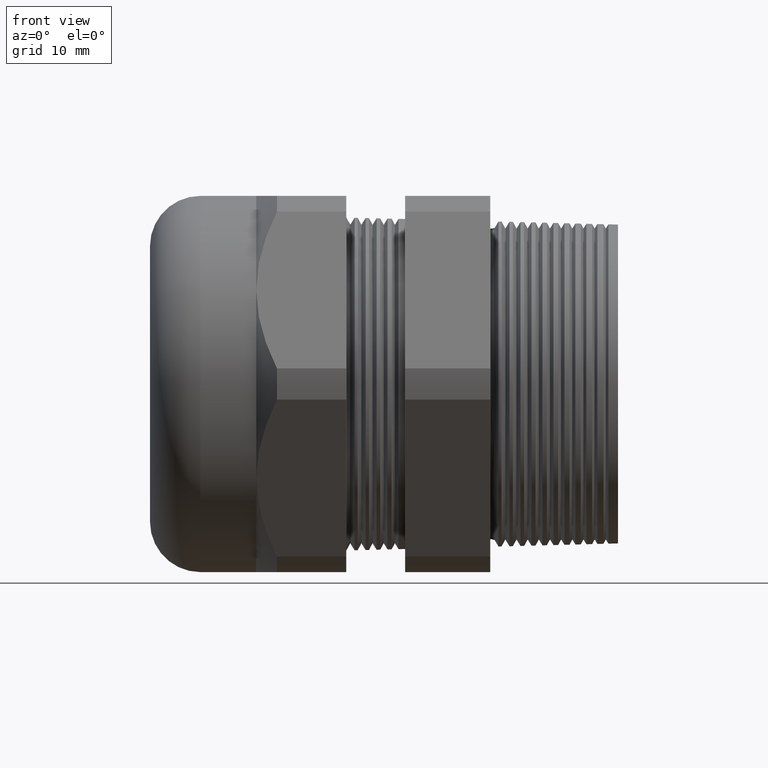
[diagram: clean part render]
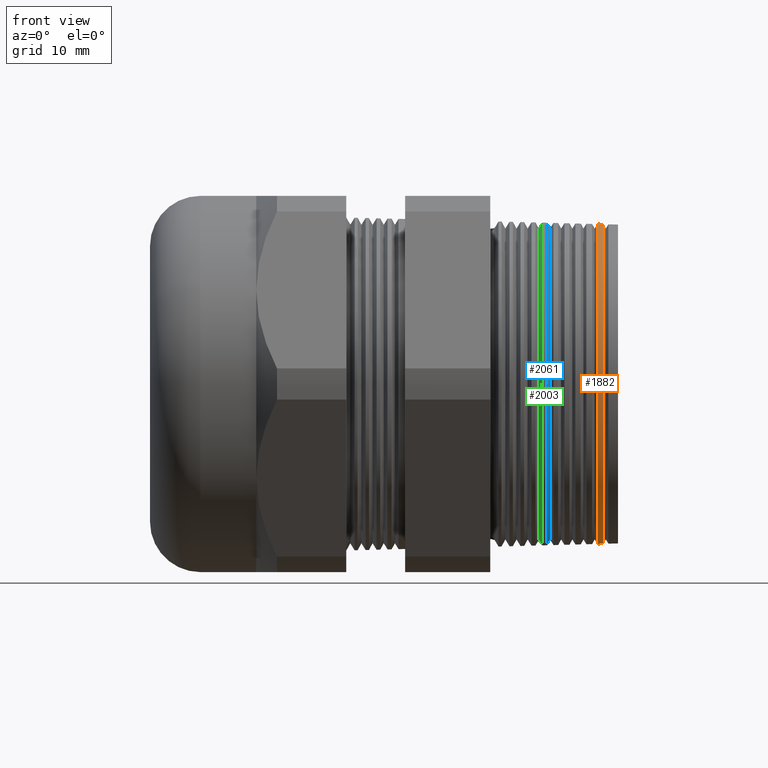
[diagram: same view with three faces highlighted in distinct colors, each labeled with its STEP entity id]
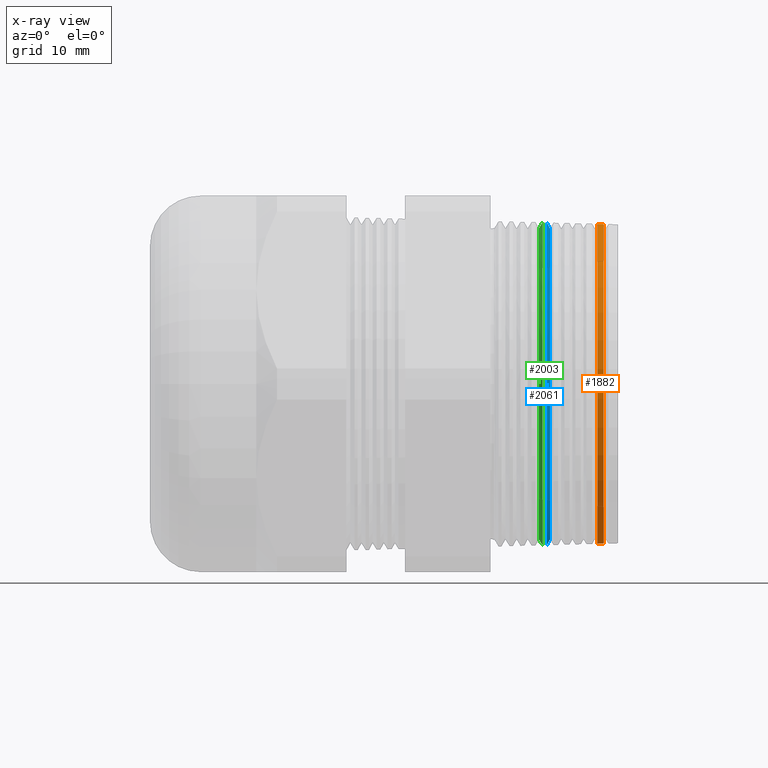
[diagram: x-ray of the same camera — body ghosted, the three highlighted faces saturated]
A machine part, front view with three faces highlighted in distinct colors.
The next image is the same camera in x-ray (body ghosted, the three faces saturated) — at least one of them is partly hidden behind the body in this view.
Their STEP definitions:

[orange] entity #1882 — the highlighted conical surface has half-angle 1.5 deg.
#1320 = VERTEX_POINT ( 'NONE', #2997 ) ;
#1341 = VERTEX_POINT ( 'NONE', #3020 ) ;
#1347 = VERTEX_POINT ( 'NONE', #3073 ) ;
#1349 = VERTEX_POINT ( 'NONE', #3067 ) ;
#1682 = EDGE_CURVE ( 'NONE', #1320, #1347, #3696, .T. ) ;
#1685 = EDGE_CURVE ( 'NONE', #1349, #1341, #3687, .T. ) ;
#1824 = EDGE_LOOP ( 'NONE', ( #1883, #1884, #1886, #1887 ) ) ;
#1882 = ADVANCED_FACE ( 'NONE', ( #4159 ), #4158, .T. ) ;
#1883 = ORIENTED_EDGE ( 'NONE', *, *, #1682, .F. ) ;
#1884 = ORIENTED_EDGE ( 'NONE', *, *, #1885, .F. ) ;
#1885 = EDGE_CURVE ( 'NONE', #1349, #1320, #4157, .T. ) ;
#1886 = ORIENTED_EDGE ( 'NONE', *, *, #1685, .T. ) ;
#1887 = ORIENTED_EDGE ( 'NONE', *, *, #1888, .F. ) ;
#1888 = EDGE_CURVE ( 'NONE', #1347, #1341, #4147, .T. ) ;
#2997 = CARTESIAN_POINT ( 'NONE',  ( 0.3189421710857152100, 1.087530360384712000E-016, -0.8875962346379190300 ) ) ;
#3020 = CARTESIAN_POINT ( 'NONE',  ( 0.2853595204696677300, 0.0000000000000000000, 0.8884756272930359700 ) ) ;
#3067 = CARTESIAN_POINT ( 'NONE',  ( 0.3189421710857152100, 0.0000000000000000000, 0.8875962346379190300 ) ) ;
#3073 = CARTESIAN_POINT ( 'NONE',  ( 0.2853595204696677300, 1.088068833084853300E-016, -0.8884756272930359700 ) ) ;
#3684 = DIRECTION ( 'NONE',  ( -0.9996573249755573700, 0.0000000000000000000, 0.02617694830786613000 ) ) ;
#3685 = VECTOR ( 'NONE', #3684, 39.37007874015748100 ) ;
#3686 = CARTESIAN_POINT ( 'NONE',  ( 0.3999999999999999700, 0.0000000000000000000, 0.8854736606874015200 ) ) ;
#3687 = LINE ( 'NONE', #3686, #3685 ) ;
#3688 = DIRECTION ( 'NONE',  ( -0.9996573249755573700, 3.205751595667398900E-018, -0.02617694830786613000 ) ) ;
#3689 = VECTOR ( 'NONE', #3688, 39.37007874015748100 ) ;
#3690 = CARTESIAN_POINT ( 'NONE',  ( 0.3999999999999999700, 1.084392484290115800E-016, -0.8854736606874015200 ) ) ;
#3696 = LINE ( 'NONE', #3690, #3689 ) ;
#4144 = DIRECTION ( 'NONE',  ( -1.000000000000000000, 0.0000000000000000000, 0.0000000000000000000 ) ) ;
#4145 = CARTESIAN_POINT ( 'NONE',  ( 0.2853595204696677300, 0.0000000000000000000, 0.0000000000000000000 ) ) ;
#4146 = AXIS2_PLACEMENT_3D ( 'NONE', #4145, #4144, #4204 ) ;
#4147 = CIRCLE ( 'NONE', #4146, 0.8884756272930359700 ) ;
#4149 = DIRECTION ( 'NONE',  ( 0.0000000000000000000, 0.0000000000000000000, 1.000000000000000000 ) ) ;
#4150 = DIRECTION ( 'NONE',  ( 1.000000000000000000, 0.0000000000000000000, 0.0000000000000000000 ) ) ;
#4151 = CARTESIAN_POINT ( 'NONE',  ( 0.3189421710857152100, 0.0000000000000000000, 0.0000000000000000000 ) ) ;
#4152 = AXIS2_PLACEMENT_3D ( 'NONE', #4151, #4150, #4149 ) ;
#4153 = DIRECTION ( 'NONE',  ( 0.0000000000000000000, 0.0000000000000000000, 1.000000000000000000 ) ) ;
#4154 = DIRECTION ( 'NONE',  ( -1.000000000000000000, 0.0000000000000000000, 0.0000000000000000000 ) ) ;
#4155 = CARTESIAN_POINT ( 'NONE',  ( 0.3999999999999999700, 0.0000000000000000000, 0.0000000000000000000 ) ) ;
#4156 = AXIS2_PLACEMENT_3D ( 'NONE', #4155, #4154, #4153 ) ;
#4157 = CIRCLE ( 'NONE', #4152, 0.8875962346379190300 ) ;
#4158 = CONICAL_SURFACE ( 'NONE', #4156, 0.8854736606874015200, 0.02617993877990792300 ) ;
#4159 = FACE_OUTER_BOUND ( 'NONE', #1824, .T. ) ;
#4204 = DIRECTION ( 'NONE',  ( 0.0000000000000000000, 0.0000000000000000000, -1.000000000000000000 ) ) ;

[blue] entity #2061 — the highlighted conical surface has half-angle 61.5 deg.
#131 = CONICAL_SURFACE ( 'NONE', #133, 0.9040656650015197500, 1.073377489976514500 ) ;
#132 = CARTESIAN_POINT ( 'NONE',  ( 0.02203901909456579600, 0.0000000000000000000, 0.0000000000000000000 ) ) ;
#133 = AXIS2_PLACEMENT_3D ( 'NONE', #193, #192, #191 ) ;
#138 = FACE_OUTER_BOUND ( 'NONE', #2062, .T. ) ;
#187 = DIRECTION ( 'NONE',  ( 0.0000000000000000000, 0.0000000000000000000, -1.000000000000000000 ) ) ;
#188 = DIRECTION ( 'NONE',  ( 1.000000000000000000, 0.0000000000000000000, 0.0000000000000000000 ) ) ;
#189 = AXIS2_PLACEMENT_3D ( 'NONE', #132, #188, #187 ) ;
#190 = CIRCLE ( 'NONE', #189, 0.8634748412764127200 ) ;
#191 = DIRECTION ( 'NONE',  ( 0.0000000000000000000, 0.0000000000000000000, 1.000000000000000000 ) ) ;
#192 = DIRECTION ( 'NONE',  ( -1.000000000000000000, 0.0000000000000000000, 0.0000000000000000000 ) ) ;
#193 = CARTESIAN_POINT ( 'NONE',  ( 0.0000000000000000000, 0.0000000000000000000, 0.0000000000000000000 ) ) ;
#1401 = EDGE_CURVE ( 'NONE', #1415, #1402, #3150, .T. ) ;
#1402 = VERTEX_POINT ( 'NONE', #3146 ) ;
#1405 = VERTEX_POINT ( 'NONE', #3201 ) ;
#1407 = EDGE_CURVE ( 'NONE', #1416, #1405, #3200, .T. ) ;
#1415 = VERTEX_POINT ( 'NONE', #3179 ) ;
#1416 = VERTEX_POINT ( 'NONE', #3178 ) ;
#1851 = EDGE_CURVE ( 'NONE', #1405, #1402, #4098, .T. ) ;
#2061 = ADVANCED_FACE ( 'NONE', ( #138 ), #131, .T. ) ;
#2062 = EDGE_LOOP ( 'NONE', ( #2063, #2064, #2066, #2067 ) ) ;
#2063 = ORIENTED_EDGE ( 'NONE', *, *, #1401, .F. ) ;
#2064 = ORIENTED_EDGE ( 'NONE', *, *, #2065, .F. ) ;
#2065 = EDGE_CURVE ( 'NONE', #1416, #1415, #190, .T. ) ;
#2066 = ORIENTED_EDGE ( 'NONE', *, *, #1407, .T. ) ;
#2067 = ORIENTED_EDGE ( 'NONE', *, *, #1851, .T. ) ;
#3146 = CARTESIAN_POINT ( 'NONE',  ( 0.004471085542857683800, 1.097464784885161400E-016, -0.8958309498197192200 ) ) ;
#3147 = DIRECTION ( 'NONE',  ( -0.4771587602596068500, 1.076240564057395800E-016, -0.8788171126619661600 ) ) ;
#3148 = VECTOR ( 'NONE', #3147, 39.37007874015748100 ) ;
#3149 = CARTESIAN_POINT ( 'NONE',  ( 0.0000000000000000000, 1.107161122863134400E-016, -0.9040656650015197500 ) ) ;
#3150 = LINE ( 'NONE', #3149, #3148 ) ;
#3178 = CARTESIAN_POINT ( 'NONE',  ( 0.02203901909456579600, 0.0000000000000000000, 0.8634748412764127200 ) ) ;
#3179 = CARTESIAN_POINT ( 'NONE',  ( 0.02203901909456579600, 1.077264102893640000E-016, -0.8634748412764127200 ) ) ;
#3197 = DIRECTION ( 'NONE',  ( -0.4771587602596068500, 0.0000000000000000000, 0.8788171126619661600 ) ) ;
#3198 = VECTOR ( 'NONE', #3197, 39.37007874015748100 ) ;
#3199 = CARTESIAN_POINT ( 'NONE',  ( 0.0000000000000000000, 0.0000000000000000000, 0.9040656650015197500 ) ) ;
#3200 = LINE ( 'NONE', #3199, #3198 ) ;
#3201 = CARTESIAN_POINT ( 'NONE',  ( 0.004471085542857683800, 0.0000000000000000000, 0.8958309498197192200 ) ) ;
#4090 = DIRECTION ( 'NONE',  ( 0.0000000000000000000, 0.0000000000000000000, 1.000000000000000000 ) ) ;
#4091 = DIRECTION ( 'NONE',  ( 1.000000000000000000, 0.0000000000000000000, 0.0000000000000000000 ) ) ;
#4092 = CARTESIAN_POINT ( 'NONE',  ( 0.004471085542857683800, 0.0000000000000000000, 0.0000000000000000000 ) ) ;
#4093 = AXIS2_PLACEMENT_3D ( 'NONE', #4092, #4091, #4090 ) ;
#4098 = CIRCLE ( 'NONE', #4093, 0.8958309498197192200 ) ;

[green] entity #2003 — the highlighted conical surface has half-angle 58.5 deg.
#70 = DIRECTION ( 'NONE',  ( 0.0000000000000000000, 0.0000000000000000000, -1.000000000000000000 ) ) ;
#71 = DIRECTION ( 'NONE',  ( 1.000000000000000000, 0.0000000000000000000, 0.0000000000000000000 ) ) ;
#72 = CARTESIAN_POINT ( 'NONE',  ( -0.03996098090543418600, 0.0000000000000000000, 0.0000000000000000000 ) ) ;
#73 = AXIS2_PLACEMENT_3D ( 'NONE', #72, #71, #70 ) ;
#75 = CONICAL_SURFACE ( 'NONE', #73, 0.8634748412764127200, 1.021017612416682300 ) ;
#76 = FACE_OUTER_BOUND ( 'NONE', #2004, .T. ) ;
#176 = DIRECTION ( 'NONE',  ( 0.0000000000000000000, 0.0000000000000000000, -1.000000000000000000 ) ) ;
#177 = DIRECTION ( 'NONE',  ( 1.000000000000000000, 0.0000000000000000000, 0.0000000000000000000 ) ) ;
#178 = CARTESIAN_POINT ( 'NONE',  ( -0.03996098090543418600, 0.0000000000000000000, 0.0000000000000000000 ) ) ;
#179 = AXIS2_PLACEMENT_3D ( 'NONE', #178, #177, #176 ) ;
#184 = CIRCLE ( 'NONE', #179, 0.8634748412764127200 ) ;
#1364 = VERTEX_POINT ( 'NONE', #3095 ) ;
#1366 = EDGE_CURVE ( 'NONE', #1364, #1367, #3094, .T. ) ;
#1367 = VERTEX_POINT ( 'NONE', #3090 ) ;
#1412 = VERTEX_POINT ( 'NONE', #3185 ) ;
#1456 = VERTEX_POINT ( 'NONE', #3286 ) ;
#1458 = EDGE_CURVE ( 'NONE', #1412, #1456, #3285, .T. ) ;
#1854 = EDGE_CURVE ( 'NONE', #1456, #1367, #4089, .T. ) ;
#2003 = ADVANCED_FACE ( 'NONE', ( #76 ), #75, .T. ) ;
#2004 = EDGE_LOOP ( 'NONE', ( #2005, #2006, #2007, #2008 ) ) ;
#2005 = ORIENTED_EDGE ( 'NONE', *, *, #1366, .F. ) ;
#2006 = ORIENTED_EDGE ( 'NONE', *, *, #2076, .T. ) ;
#2007 = ORIENTED_EDGE ( 'NONE', *, *, #1458, .T. ) ;
#2008 = ORIENTED_EDGE ( 'NONE', *, *, #1854, .T. ) ;
#2076 = EDGE_CURVE ( 'NONE', #1364, #1412, #184, .T. ) ;
#3090 = CARTESIAN_POINT ( 'NONE',  ( -0.01974454976139390600, 0.0000000000000000000, 0.8964650585465441200 ) ) ;
#3091 = DIRECTION ( 'NONE',  ( 0.5224985647159492400, 1.044183048100711700E-016, 0.8526401643540920700 ) ) ;
#3092 = VECTOR ( 'NONE', #3091, 39.37007874015748100 ) ;
#3093 = CARTESIAN_POINT ( 'NONE',  ( -0.03996098090543418600, 1.057451700513427700E-016, 0.8634748412764127200 ) ) ;
#3094 = LINE ( 'NONE', #3093, #3092 ) ;
#3095 = CARTESIAN_POINT ( 'NONE',  ( -0.03996098090543418600, 0.0000000000000000000, 0.8634748412764127200 ) ) ;
#3185 = CARTESIAN_POINT ( 'NONE',  ( -0.03996098090543418600, 1.078272564652568200E-016, -0.8634748412764127200 ) ) ;
#3282 = DIRECTION ( 'NONE',  ( 0.5224985647159492400, 0.0000000000000000000, -0.8526401643540920700 ) ) ;
#3283 = VECTOR ( 'NONE', #3282, 39.37007874015748100 ) ;
#3284 = CARTESIAN_POINT ( 'NONE',  ( -0.03996098090543418600, 0.0000000000000000000, -0.8634748412764127200 ) ) ;
#3285 = LINE ( 'NONE', #3284, #3283 ) ;
#3286 = CARTESIAN_POINT ( 'NONE',  ( -0.01974454976139390600, 1.097853064496469800E-016, -0.8964650585465441200 ) ) ;
#4085 = DIRECTION ( 'NONE',  ( 0.0000000000000000000, 0.0000000000000000000, -1.000000000000000000 ) ) ;
#4086 = DIRECTION ( 'NONE',  ( -1.000000000000000000, 0.0000000000000000000, 0.0000000000000000000 ) ) ;
#4087 = CARTESIAN_POINT ( 'NONE',  ( -0.01974454976139390600, 0.0000000000000000000, 0.0000000000000000000 ) ) ;
#4088 = AXIS2_PLACEMENT_3D ( 'NONE', #4087, #4086, #4085 ) ;
#4089 = CIRCLE ( 'NONE', #4088, 0.8964650585465441200 ) ;